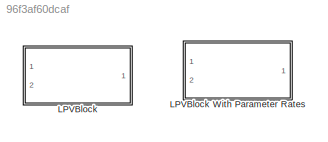
MODEL slx_96f3af60dcaf
KIND library
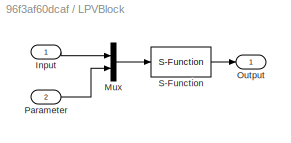
BLOCK [SubSystem] LPVBlock
  Ports = [2, 1]
  RequestExecContextInheritance = off
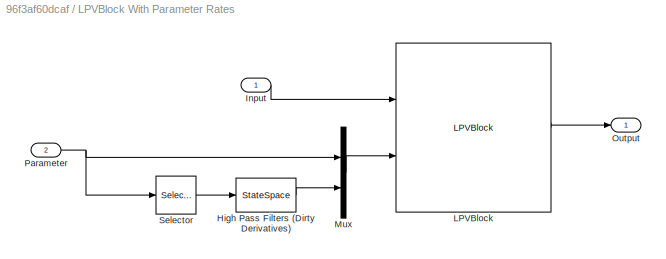
BLOCK [SubSystem] LPVBlock With Parameter Rates
  Ports = [2, 1]
  RequestExecContextInheritance = off
BLOCK [StateSpace] LPVBlock With Parameter Rates/High Pass Filters (Dirty Derivatives)
  A = Ahp
  B = Bhp
  C = Chp
  D = Dhp
  Ports = [1, 1]
  X0 = zeros( size(Ahp,1), 1)
BLOCK [Inport] LPVBlock With Parameter Rates/Input
  IconDisplay = Port number
BLOCK [Reference] LPVBlock With Parameter Rates/LPVBlock  REF=LPVBlockLibrary/LPVBlock
  FunctionWithSeparateData = off
  GeneratePreprocessorConditionals = off
  Ports = [2, 1]
  RTWMemSecDataConstants = Inherit from model
  RTWMemSecDataInternal = Inherit from model
  RTWMemSecDataParameters = Inherit from model
  RTWMemSecFuncExecute = Inherit from model
  RTWMemSecFuncInitTerm = Inherit from model
  ShowPortLabels = FromPortIcon
  SourceBlock = LPVBlockLibrary/LPVBlock
  SourceType = Unknown
  SystemSampleTime = -1
  plist = pALL
  sys = sys
  x0 = x0
BLOCK [Mux] LPVBlock With Parameter Rates/Mux
  DisplayOption = bar
  Inputs = 2
  Ports = [2, 1]
BLOCK [Outport] LPVBlock With Parameter Rates/Output
  IconDisplay = Port number
BLOCK [Inport] LPVBlock With Parameter Rates/Parameter
  IconDisplay = Port number
  Port = 2
BLOCK [Selector] LPVBlock With Parameter Rates/Selector
  Indices = prateidx
  InputPortWidth = nplist
  Ports = [1, 1]
BLOCK [Inport] LPVBlock/Input
  IconDisplay = Port number
BLOCK [Mux] LPVBlock/Mux
  DisplayOption = bar
  Inputs = [nU niv]
  Ports = [2, 1]
BLOCK [Outport] LPVBlock/Output
  IconDisplay = Port number
BLOCK [Inport] LPVBlock/Parameter
  IconDisplay = Port number
  Port = 2
BLOCK [S-Function] LPVBlock/S-Function
  EnableBusSupport = off
  FunctionName = lpvblksim
  Parameters = nU,ABMat,CDMat,IVData,dIVData,niv,LIVData,x0
  Ports = [1, 1]
LINE LPVBlock With Parameter Rates/High Pass Filters (Dirty Derivatives):1 -> LPVBlock With Parameter Rates/Mux:2
LINE LPVBlock With Parameter Rates/Input:1 -> LPVBlock With Parameter Rates/LPVBlock:1
LINE LPVBlock With Parameter Rates/LPVBlock:1 -> LPVBlock With Parameter Rates/Output:1
LINE LPVBlock With Parameter Rates/Mux:1 -> LPVBlock With Parameter Rates/LPVBlock:2
NET LPVBlock With Parameter Rates/Parameter:1 -> LPVBlock With Parameter Rates/Mux:1, LPVBlock With Parameter Rates/Selector:1
LINE LPVBlock With Parameter Rates/Selector:1 -> LPVBlock With Parameter Rates/High Pass Filters (Dirty Derivatives):1
LINE LPVBlock/Input:1 -> LPVBlock/Mux:1
LINE LPVBlock/Mux:1 -> LPVBlock/S-Function:1
LINE LPVBlock/Parameter:1 -> LPVBlock/Mux:2
LINE LPVBlock/S-Function:1 -> LPVBlock/Output:1
note: NET lines group one-source signal fan-out (src -> all destinations, sorted); 1:1 wires keep LINE
